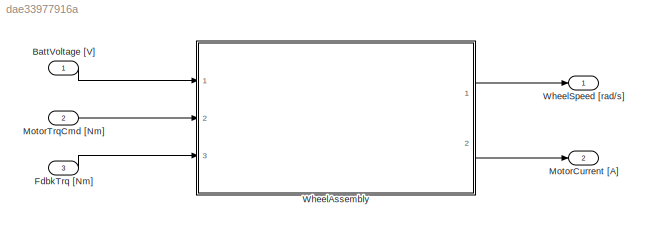
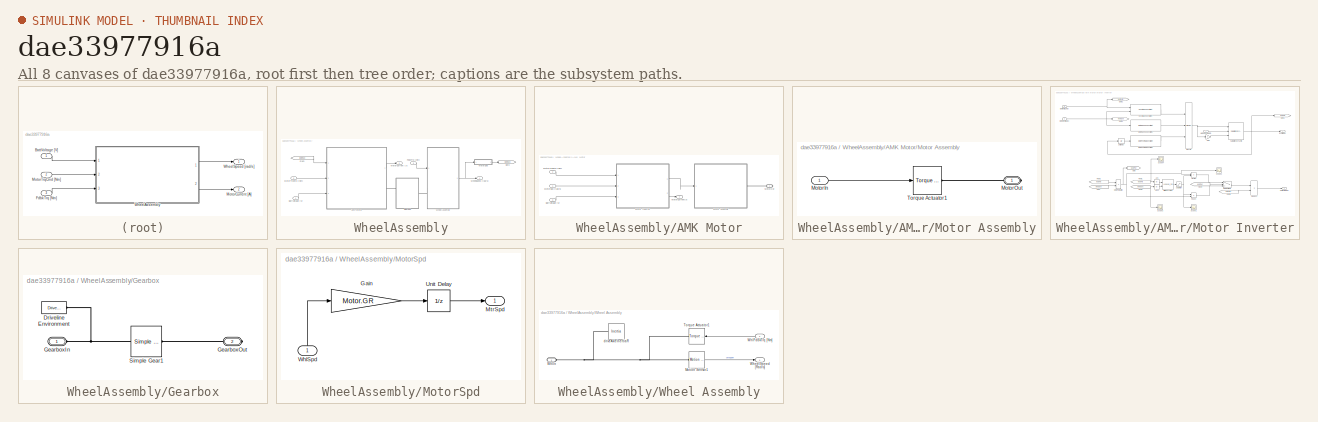
[diagram: thumbnail index - all 8 canvases of the model, root first then tree order]
MODEL slx_dae33977916a
KIND library
CONFIG AbsTol = auto
CONFIG FixedStep = auto
CONFIG MaxStep = auto
CONFIG MinStep = auto
CONFIG RelTol = 1e-3
CONFIG SampleTimeConstraint = Unconstrained
CONFIG Solver = ode45
CONFIG SolverMode = Auto
CONFIG SolverName = ode45
CONFIG StartTime = 0.0
CONFIG StopTime = 10.0
BLOCK [Inport] BattVoltage [V]
  IconDisplay = Port number
BLOCK [Inport] FdbkTrq [Nm]
  IconDisplay = Port number
  Port = 3
BLOCK [Outport] MotorCurrent [A]
  IconDisplay = Port number
  Port = 2
BLOCK [Inport] MotorTrqCmd [Nm]
  IconDisplay = Port number
  Port = 2
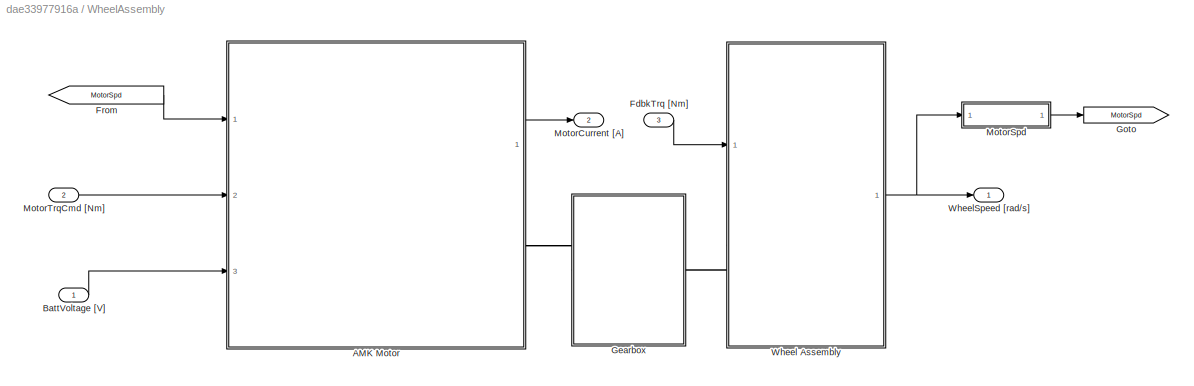
BLOCK [SubSystem] WheelAssembly
  Ports = [3, 2]
  RequestExecContextInheritance = off
BLOCK [SubSystem] WheelAssembly/AMK Motor
  Ports = [3, 1, 0, 0, 0, 0, 1]
  RequestExecContextInheritance = off
BLOCK [Inport] WheelAssembly/AMK Motor/BattVoltage [V]
  IconDisplay = Port number
  Port = 3
BLOCK [SubSystem] WheelAssembly/AMK Motor/Motor Assembly
  Ports = [1, 0, 0, 0, 0, 0, 1]
  RequestExecContextInheritance = off
BLOCK [Inport] WheelAssembly/AMK Motor/Motor Assembly/MotorIn
  IconDisplay = Port number
BLOCK [PMIOPort] WheelAssembly/AMK Motor/Motor Assembly/MotorOut
  Port = 1
  Side = Right
BLOCK [Reference] WheelAssembly/AMK Motor/Motor Assembly/Torque Actuator1  REF=driveline/Sensors &  (lib defined in slx_0115b7ecc7e4, slx_0630d05a24ab, +7 more)
Actuators/Torque Actuator
  Ports = [1, 0, 0, 0, 0, 0, 1]
  SourceBlock = driveline/Sensors &\nActuators/Torque Actuator
  SourceType = Torque Actuator
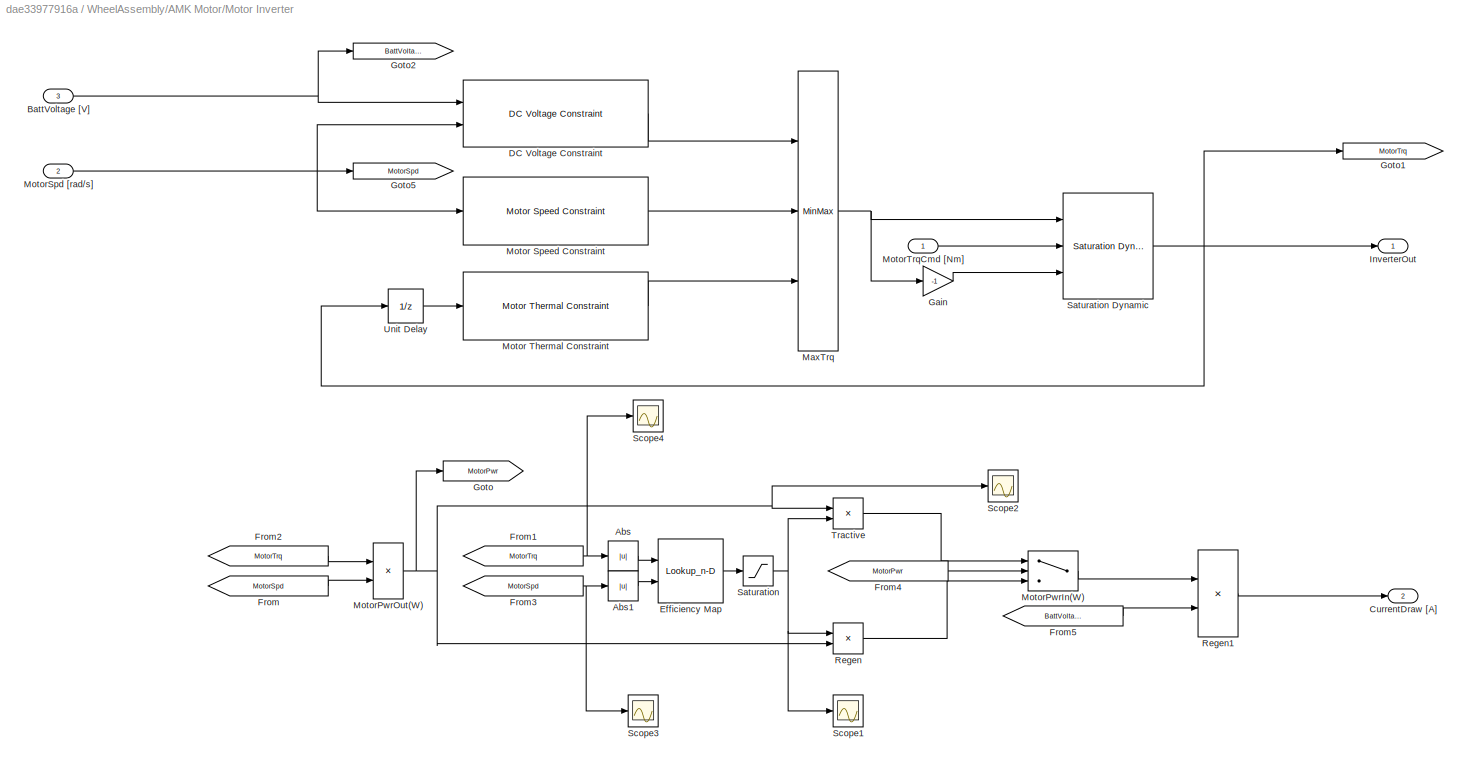
BLOCK [SubSystem] WheelAssembly/AMK Motor/Motor Inverter
  Ports = [3, 2]
  RequestExecContextInheritance = off
BLOCK [Abs] WheelAssembly/AMK Motor/Motor Inverter/Abs
  SaturateOnIntegerOverflow = off
BLOCK [Abs] WheelAssembly/AMK Motor/Motor Inverter/Abs1
  SaturateOnIntegerOverflow = off
BLOCK [Inport] WheelAssembly/AMK Motor/Motor Inverter/BattVoltage [V]
  IconDisplay = Port number
  Port = 3
BLOCK [Outport] WheelAssembly/AMK Motor/Motor Inverter/CurrentDraw [A]
  IconDisplay = Port number
  Port = 2
BLOCK [Reference] WheelAssembly/AMK Motor/Motor Inverter/DC Voltage Constraint  REF=AMKMotor/WheelAssembly/AMK Motor/Motor Inverter/DC Voltage Constraint
  Ports = [2, 1]
  SourceBlock = AMKMotor/WheelAssembly/AMK Motor/Motor Inverter/DC Voltage Constraint
  SourceType = SubSystem
BLOCK [Lookup_n-D] WheelAssembly/AMK Motor/Motor Inverter/Efficiency Map
  BreakpointsForDimension1 = Motor.Efficiency.Trq
  BreakpointsForDimension2 = Motor.Efficiency.Spd
  InternalRulePriority = Speed
  Ports = [2, 1]
  RndMeth = Simplest
  Table = Motor.Efficiency.Eff
BLOCK [From] WheelAssembly/AMK Motor/Motor Inverter/From
  GotoTag = MotorSpd
BLOCK [From] WheelAssembly/AMK Motor/Motor Inverter/From1
  GotoTag = MotorTrq
BLOCK [From] WheelAssembly/AMK Motor/Motor Inverter/From2
  GotoTag = MotorTrq
BLOCK [From] WheelAssembly/AMK Motor/Motor Inverter/From3
  GotoTag = MotorSpd
BLOCK [From] WheelAssembly/AMK Motor/Motor Inverter/From4
  GotoTag = MotorPwr
BLOCK [From] WheelAssembly/AMK Motor/Motor Inverter/From5
  GotoTag = BattVoltage
BLOCK [Gain] WheelAssembly/AMK Motor/Motor Inverter/Gain
  Gain = -1
  OutDataTypeStr = Inherit: Inherit via internal rule
  ParamDataTypeStr = Inherit: Inherit via internal rule
  SaturateOnIntegerOverflow = off
BLOCK [Goto] WheelAssembly/AMK Motor/Motor Inverter/Goto
  GotoTag = MotorPwr
BLOCK [Goto] WheelAssembly/AMK Motor/Motor Inverter/Goto1
  GotoTag = MotorTrq
BLOCK [Goto] WheelAssembly/AMK Motor/Motor Inverter/Goto2
  GotoTag = BattVoltage
BLOCK [Goto] WheelAssembly/AMK Motor/Motor Inverter/Goto5
  GotoTag = MotorSpd
BLOCK [Outport] WheelAssembly/AMK Motor/Motor Inverter/InverterOut
  IconDisplay = Port number
BLOCK [MinMax] WheelAssembly/AMK Motor/Motor Inverter/MaxTrq
  InputSameDT = off
  Inputs = 3
  Ports = [3, 1]
  SaturateOnIntegerOverflow = off
BLOCK [Reference] WheelAssembly/AMK Motor/Motor Inverter/Motor Speed Constraint  REF=AMKMotor/WheelAssembly/AMK Motor/Motor Inverter/Motor Speed Constraint
  Ports = [1, 1]
  SourceBlock = AMKMotor/WheelAssembly/AMK Motor/Motor Inverter/Motor Speed Constraint
  SourceType = SubSystem
BLOCK [Reference] WheelAssembly/AMK Motor/Motor Inverter/Motor Thermal Constraint  REF=AMKMotor/WheelAssembly/AMK Motor/Motor Inverter/Motor Thermal Constraint
  Ports = [1, 1]
  SourceBlock = AMKMotor/WheelAssembly/AMK Motor/Motor Inverter/Motor Thermal Constraint
  SourceType = SubSystem
BLOCK [Switch] WheelAssembly/AMK Motor/Motor Inverter/MotorPwrIn(W)
  Criteria = u2 > Threshold
  InputSameDT = off
  SaturateOnIntegerOverflow = off
BLOCK [Product] WheelAssembly/AMK Motor/Motor Inverter/MotorPwrOut(W)
  InputSameDT = off
  OutDataTypeStr = Inherit: Inherit via internal rule
  Ports = [2, 1]
  RndMeth = Floor
  SaturateOnIntegerOverflow = off
BLOCK [Inport] WheelAssembly/AMK Motor/Motor Inverter/MotorSpd [rad//s]
  IconDisplay = Port number
  Port = 2
BLOCK [Inport] WheelAssembly/AMK Motor/Motor Inverter/MotorTrqCmd [Nm]
  IconDisplay = Port number
BLOCK [Product] WheelAssembly/AMK Motor/Motor Inverter/Regen
  InputSameDT = off
  OutDataTypeStr = Inherit: Inherit via internal rule
  Ports = [2, 1]
  RndMeth = Floor
  SaturateOnIntegerOverflow = off
BLOCK [Product] WheelAssembly/AMK Motor/Motor Inverter/Regen1
  InputSameDT = off
  Inputs = */
  OutDataTypeStr = Inherit: Inherit via internal rule
  Ports = [2, 1]
  RndMeth = Floor
  SaturateOnIntegerOverflow = off
BLOCK [Saturate] WheelAssembly/AMK Motor/Motor Inverter/Saturation
  InputPortMap = u0
  LowerLimit = 0
  Ports = [1, 1]
  UpperLimit = 1
BLOCK [Reference] WheelAssembly/AMK Motor/Motor Inverter/Saturation Dynamic  REF=simulink/Discontinuities/Saturation
Dynamic
  DoSatur = off
  LockScale = off
  OutDataType = fixdt(1, 16)
  OutDataTypeStr = Inherit: Same as second input
  OutMax = []
  OutMin = []
  OutScaling = 2^-10
  OutputDataTypeScalingMode = Same as second input
  Ports = [3, 1]
  RndMeth = Floor
  SourceBlock = simulink/Discontinuities/Saturation\nDynamic
  SourceType = Saturation Dynamic
BLOCK [Scope] WheelAssembly/AMK Motor/Motor Inverter/Scope1
  Floating = off
  NumInputPorts = 1
  Ports = [1]
  SaveName = ScopeData16
  YMax = 1
  YMin = 0
BLOCK [Scope] WheelAssembly/AMK Motor/Motor Inverter/Scope2
  Floating = off
  NumInputPorts = 1
  Ports = [1]
  SaveName = ScopeData17
  YMax = 18000
  YMin = -0
BLOCK [Scope] WheelAssembly/AMK Motor/Motor Inverter/Scope3
  Floating = off
  NumInputPorts = 1
  Ports = [1]
  SaveName = ScopeData18
  YMax = 21
  YMin = 0
BLOCK [Scope] WheelAssembly/AMK Motor/Motor Inverter/Scope4
  Floating = off
  NumInputPorts = 1
  Ports = [1]
  SaveName = ScopeData19
  YMax = 21
  YMin = 0
BLOCK [Product] WheelAssembly/AMK Motor/Motor Inverter/Tractive
  InputSameDT = off
  Inputs = */
  OutDataTypeStr = Inherit: Inherit via internal rule
  Ports = [2, 1]
  RndMeth = Floor
  SaturateOnIntegerOverflow = off
BLOCK [UnitDelay] WheelAssembly/AMK Motor/Motor Inverter/Unit Delay
  InputProcessing = Elements as channels (sample based)
  SampleTime = -1
BLOCK [Outport] WheelAssembly/AMK Motor/MotorCurrent[A]
  IconDisplay = Port number
BLOCK [PMIOPort] WheelAssembly/AMK Motor/MotorOut
  Port = 1
  Side = Right
BLOCK [Inport] WheelAssembly/AMK Motor/MotorSpd [rad//s]
  IconDisplay = Port number
BLOCK [Inport] WheelAssembly/AMK Motor/MotorTrqCmd [Nm]
  IconDisplay = Port number
  Port = 2
BLOCK [Inport] WheelAssembly/BattVoltage [V]
  IconDisplay = Port number
BLOCK [Inport] WheelAssembly/FdbkTrq [Nm]
  IconDisplay = Port number
  Port = 3
BLOCK [From] WheelAssembly/From
  GotoTag = MotorSpd
BLOCK [SubSystem] WheelAssembly/Gearbox
  Ports = [0, 0, 0, 0, 0, 1, 1]
  RequestExecContextInheritance = off
BLOCK [Reference] WheelAssembly/Gearbox/Driveline Environment  REF=driveline/Solver &  (lib defined in slx_0115b7ecc7e4, slx_0630d05a24ab, +7 more)
Inertias/Driveline
Environment
  BlockClass = Solver
  DefaultClutchVelocityTolerance = 1e-3
  DefaultUseAutoClutchVelocityTolerance = off
  ModeIteration = on
  PhysicalDomain = driveline_domain
  PortType = p1
  Ports = [0, 0, 0, 0, 0, 1]
  SourceBlock = driveline/Solver &\nInertias/Driveline\nEnvironment
  SourceType = Driveline Environment
BLOCK [PMIOPort] WheelAssembly/Gearbox/GearboxIn
  Port = 1
  Side = Left
BLOCK [PMIOPort] WheelAssembly/Gearbox/GearboxOut
  Port = 2
  Side = Right
BLOCK [Reference] WheelAssembly/Gearbox/Simple Gear1  REF=driveline/Gears/Simple Gear  (lib defined in slx_0115b7ecc7e4, slx_0630d05a24ab, +7 more)
  BlockClass = SimpleGear
  PhysicalDomain = driveline_domain
  PortType = p1
  Ports = [0, 0, 0, 0, 0, 1, 1]
  Ratio = Motor.GR
  Reversing = off
  SourceBlock = driveline/Gears/Simple Gear
  SourceType = Simple Gear
BLOCK [Goto] WheelAssembly/Goto
  GotoTag = MotorSpd
BLOCK [Outport] WheelAssembly/MotorCurrent [A]
  IconDisplay = Port number
  Port = 2
BLOCK [SubSystem] WheelAssembly/MotorSpd
  Ports = [1, 1]
  RequestExecContextInheritance = off
BLOCK [Gain] WheelAssembly/MotorSpd/Gain
  Gain = Motor.GR
  OutDataTypeStr = Inherit: Inherit via internal rule
  ParamDataTypeStr = Inherit: Inherit via internal rule
  SaturateOnIntegerOverflow = off
BLOCK [Outport] WheelAssembly/MotorSpd/MtrSpd
  IconDisplay = Port number
BLOCK [UnitDelay] WheelAssembly/MotorSpd/Unit Delay
  InputProcessing = Elements as channels (sample based)
  SampleTime = -1
BLOCK [Inport] WheelAssembly/MotorSpd/WhlSpd
  IconDisplay = Port number
BLOCK [Inport] WheelAssembly/MotorTrqCmd [Nm]
  IconDisplay = Port number
  Port = 2
BLOCK [SubSystem] WheelAssembly/Wheel Assembly
  Ports = [1, 1, 0, 0, 0, 1]
  RequestExecContextInheritance = off
BLOCK [Reference] WheelAssembly/Wheel Assembly/Motion Sensor1  REF=driveline/Sensors &  (lib defined in slx_0115b7ecc7e4, slx_0630d05a24ab, +7 more)
Actuators/Motion Sensor
  Acceleration = off
  Angle = off
  Ports = [0, 1, 0, 0, 0, 1]
  SourceBlock = driveline/Sensors &\nActuators/Motion Sensor
  SourceType = Motion Sensor
  Velocity = on
  x0 = 0
BLOCK [Reference] WheelAssembly/Wheel Assembly/Torque Actuator1  REF=driveline/Sensors &  (lib defined in slx_0115b7ecc7e4, slx_0630d05a24ab, +7 more)
Actuators/Torque Actuator
  Ports = [1, 0, 0, 0, 0, 0, 1]
  SourceBlock = driveline/Sensors &\nActuators/Torque Actuator
  SourceType = Torque Actuator
BLOCK [Outport] WheelAssembly/Wheel Assembly/WheelSpeed [Rad//s]
  IconDisplay = Port number
BLOCK [Inport] WheelAssembly/Wheel Assembly/WhlFdbkTrq [Nm]
  IconDisplay = Port number
BLOCK [PMIOPort] WheelAssembly/Wheel Assembly/WhlIn
  Port = 1
  Side = Left
BLOCK [Reference] WheelAssembly/Wheel Assembly/driveAxleInertiaR  REF=driveline/Solver &  (lib defined in slx_0115b7ecc7e4, slx_0630d05a24ab, +7 more)
Inertias/Inertia
  BlockClass = Inertia
  I = 0.5
  Ip = []
  Iv = []
  PhysicalDomain = driveline_domain
  PortType = p1
  Ports = [0, 0, 0, 0, 0, 1]
  ShowLeft = on
  ShowRight = off
  SourceBlock = driveline/Solver &\nInertias/Inertia
  SourceType = Inertia
BLOCK [Outport] WheelAssembly/WheelSpeed [rad//s]
  IconDisplay = Port number
BLOCK [Outport] WheelSpeed [rad//s]
  IconDisplay = Port number
LINE BattVoltage [V]:1 -> WheelAssembly:1
LINE FdbkTrq [Nm]:1 -> WheelAssembly:3
LINE MotorTrqCmd [Nm]:1 -> WheelAssembly:2
LINE WheelAssembly/AMK Motor/BattVoltage [V]:1 -> WheelAssembly/AMK Motor/Motor Inverter:3
LINE WheelAssembly/AMK Motor/Motor Assembly/MotorIn:1 -> WheelAssembly/AMK Motor/Motor Assembly/Torque Actuator1:1
LINE WheelAssembly/AMK Motor/Motor Inverter/Abs1:1 -> WheelAssembly/AMK Motor/Motor Inverter/Efficiency Map:2
LINE WheelAssembly/AMK Motor/Motor Inverter/Abs:1 -> WheelAssembly/AMK Motor/Motor Inverter/Efficiency Map:1
NET WheelAssembly/AMK Motor/Motor Inverter/BattVoltage [V]:1 -> WheelAssembly/AMK Motor/Motor Inverter/DC Voltage Constraint:1, WheelAssembly/AMK Motor/Motor Inverter/Goto2:1
LINE WheelAssembly/AMK Motor/Motor Inverter/DC Voltage Constraint:1 -> WheelAssembly/AMK Motor/Motor Inverter/MaxTrq:1
LINE WheelAssembly/AMK Motor/Motor Inverter/Efficiency Map:1 -> WheelAssembly/AMK Motor/Motor Inverter/Saturation:1
NET WheelAssembly/AMK Motor/Motor Inverter/From1:1 -> WheelAssembly/AMK Motor/Motor Inverter/Abs:1, WheelAssembly/AMK Motor/Motor Inverter/Scope4:1
LINE WheelAssembly/AMK Motor/Motor Inverter/From2:1 -> WheelAssembly/AMK Motor/Motor Inverter/MotorPwrOut(W):1
NET WheelAssembly/AMK Motor/Motor Inverter/From3:1 -> WheelAssembly/AMK Motor/Motor Inverter/Abs1:1, WheelAssembly/AMK Motor/Motor Inverter/Scope3:1
LINE WheelAssembly/AMK Motor/Motor Inverter/From4:1 -> WheelAssembly/AMK Motor/Motor Inverter/MotorPwrIn(W):2
LINE WheelAssembly/AMK Motor/Motor Inverter/From5:1 -> WheelAssembly/AMK Motor/Motor Inverter/Regen1:2
LINE WheelAssembly/AMK Motor/Motor Inverter/From:1 -> WheelAssembly/AMK Motor/Motor Inverter/MotorPwrOut(W):2
LINE WheelAssembly/AMK Motor/Motor Inverter/Gain:1 -> WheelAssembly/AMK Motor/Motor Inverter/Saturation Dynamic:3
NET WheelAssembly/AMK Motor/Motor Inverter/MaxTrq:1 -> WheelAssembly/AMK Motor/Motor Inverter/Gain:1, WheelAssembly/AMK Motor/Motor Inverter/Saturation Dynamic:1
LINE WheelAssembly/AMK Motor/Motor Inverter/Motor Speed Constraint:1 -> WheelAssembly/AMK Motor/Motor Inverter/MaxTrq:2
LINE WheelAssembly/AMK Motor/Motor Inverter/Motor Thermal Constraint:1 -> WheelAssembly/AMK Motor/Motor Inverter/MaxTrq:3
LINE WheelAssembly/AMK Motor/Motor Inverter/MotorPwrIn(W):1 -> WheelAssembly/AMK Motor/Motor Inverter/Regen1:1
NET WheelAssembly/AMK Motor/Motor Inverter/MotorPwrOut(W):1 -> WheelAssembly/AMK Motor/Motor Inverter/Goto:1, WheelAssembly/AMK Motor/Motor Inverter/Regen:2, WheelAssembly/AMK Motor/Motor Inverter/Scope2:1, WheelAssembly/AMK Motor/Motor Inverter/Tractive:1
NET WheelAssembly/AMK Motor/Motor Inverter/MotorSpd [rad//s]:1 -> WheelAssembly/AMK Motor/Motor Inverter/DC Voltage Constraint:2, WheelAssembly/AMK Motor/Motor Inverter/Goto5:1, WheelAssembly/AMK Motor/Motor Inverter/Motor Speed Constraint:1
LINE WheelAssembly/AMK Motor/Motor Inverter/MotorTrqCmd [Nm]:1 -> WheelAssembly/AMK Motor/Motor Inverter/Saturation Dynamic:2
LINE WheelAssembly/AMK Motor/Motor Inverter/Regen1:1 -> WheelAssembly/AMK Motor/Motor Inverter/CurrentDraw [A]:1
LINE WheelAssembly/AMK Motor/Motor Inverter/Regen:1 -> WheelAssembly/AMK Motor/Motor Inverter/MotorPwrIn(W):3
NET WheelAssembly/AMK Motor/Motor Inverter/Saturation Dynamic:1 -> WheelAssembly/AMK Motor/Motor Inverter/Goto1:1, WheelAssembly/AMK Motor/Motor Inverter/InverterOut:1, WheelAssembly/AMK Motor/Motor Inverter/Unit Delay:1
NET WheelAssembly/AMK Motor/Motor Inverter/Saturation:1 -> WheelAssembly/AMK Motor/Motor Inverter/Regen:1, WheelAssembly/AMK Motor/Motor Inverter/Scope1:1, WheelAssembly/AMK Motor/Motor Inverter/Tractive:2
LINE WheelAssembly/AMK Motor/Motor Inverter/Tractive:1 -> WheelAssembly/AMK Motor/Motor Inverter/MotorPwrIn(W):1
LINE WheelAssembly/AMK Motor/Motor Inverter/Unit Delay:1 -> WheelAssembly/AMK Motor/Motor Inverter/Motor Thermal Constraint:1
LINE WheelAssembly/AMK Motor/Motor Inverter:1 -> WheelAssembly/AMK Motor/Motor Assembly:1
LINE WheelAssembly/AMK Motor/Motor Inverter:2 -> WheelAssembly/AMK Motor/MotorCurrent[A]:1
LINE WheelAssembly/AMK Motor/MotorSpd [rad//s]:1 -> WheelAssembly/AMK Motor/Motor Inverter:2
LINE WheelAssembly/AMK Motor/MotorTrqCmd [Nm]:1 -> WheelAssembly/AMK Motor/Motor Inverter:1
LINE WheelAssembly/AMK Motor:1 -> WheelAssembly/MotorCurrent [A]:1
LINE WheelAssembly/BattVoltage [V]:1 -> WheelAssembly/AMK Motor:3
LINE WheelAssembly/FdbkTrq [Nm]:1 -> WheelAssembly/Wheel Assembly:1
LINE WheelAssembly/From:1 -> WheelAssembly/AMK Motor:1
LINE WheelAssembly/MotorSpd/Gain:1 -> WheelAssembly/MotorSpd/Unit Delay:1
LINE WheelAssembly/MotorSpd/Unit Delay:1 -> WheelAssembly/MotorSpd/MtrSpd:1
LINE WheelAssembly/MotorSpd/WhlSpd:1 -> WheelAssembly/MotorSpd/Gain:1
LINE WheelAssembly/MotorSpd:1 -> WheelAssembly/Goto:1
LINE WheelAssembly/MotorTrqCmd [Nm]:1 -> WheelAssembly/AMK Motor:2
LINE WheelAssembly/Wheel Assembly/Motion Sensor1:1 -> WheelAssembly/Wheel Assembly/WheelSpeed [Rad//s]:1
LINE WheelAssembly/Wheel Assembly/WhlFdbkTrq [Nm]:1 -> WheelAssembly/Wheel Assembly/Torque Actuator1:1
NET WheelAssembly/Wheel Assembly:1 -> WheelAssembly/MotorSpd:1, WheelAssembly/WheelSpeed [rad//s]:1
LINE WheelAssembly:1 -> WheelSpeed [rad//s]:1
LINE WheelAssembly:2 -> MotorCurrent [A]:1
PLINE WheelAssembly/AMK Motor/Motor Assembly/MotorOut:RConn1 -- WheelAssembly/AMK Motor/Motor Assembly/Torque Actuator1:RConn1
PLINE WheelAssembly/AMK Motor/Motor Assembly:RConn1 -- WheelAssembly/AMK Motor/MotorOut:RConn1
PLINE WheelAssembly/AMK Motor:RConn1 -- WheelAssembly/Gearbox:LConn1
PNET net1: WheelAssembly/Gearbox/Driveline Environment:LConn1 -- WheelAssembly/Gearbox/GearboxIn:RConn1 -- WheelAssembly/Gearbox/Simple Gear1:LConn1
PLINE WheelAssembly/Gearbox/GearboxOut:RConn1 -- WheelAssembly/Gearbox/Simple Gear1:RConn1
PLINE WheelAssembly/Gearbox:RConn1 -- WheelAssembly/Wheel Assembly:LConn1
PNET net2: WheelAssembly/Wheel Assembly/Motion Sensor1:LConn1 -- WheelAssembly/Wheel Assembly/Torque Actuator1:RConn1 -- WheelAssembly/Wheel Assembly/WhlIn:RConn1 -- WheelAssembly/Wheel Assembly/driveAxleInertiaR:LConn1
note: NET lines group one-source signal fan-out (src -> all destinations, sorted); 1:1 wires keep LINE; PNET lines group multi-terminal physical nets as a canonical sorted terminal list (undirected conserving connections); 2-terminal nets keep the pairwise PLINE form
